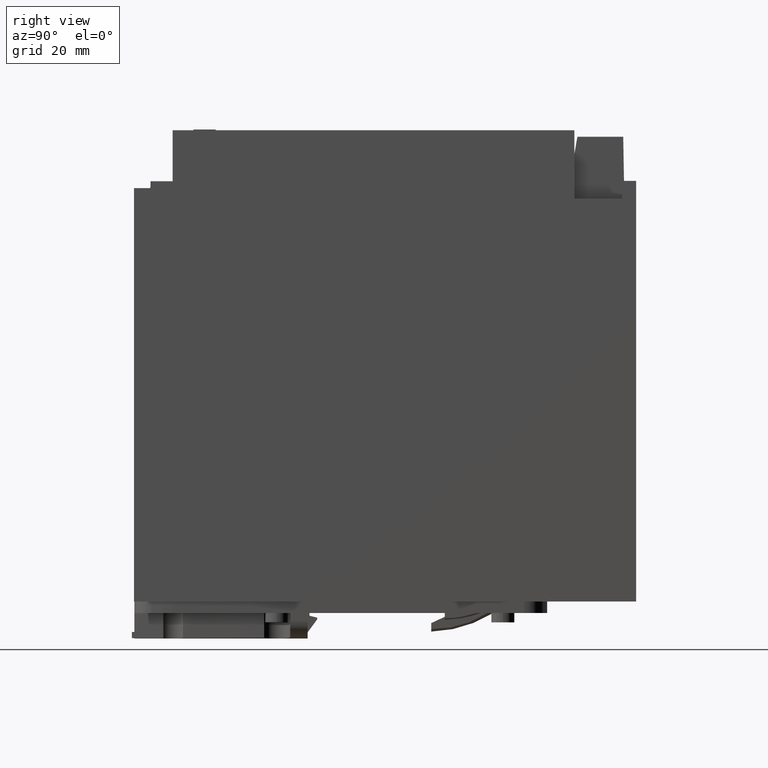
[diagram: clean part render]
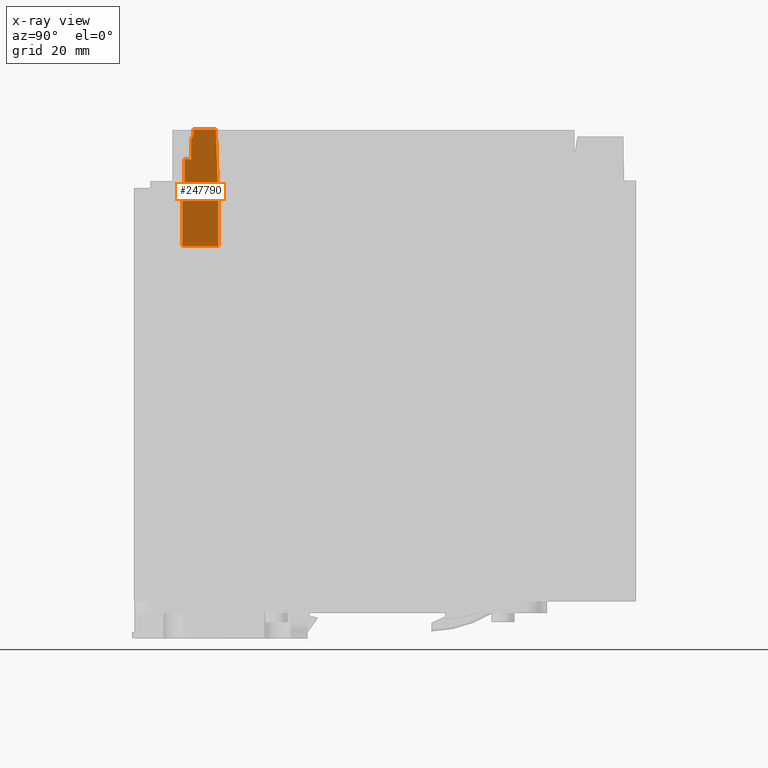
[diagram: x-ray — body ghosted, one internal face saturated and labeled with its STEP entity id]
A machine part, right view, then the same camera in x-ray: the body is ghosted and one INTERNAL B-rep face — a face not visible from any outside direction — is saturated and labeled: STEP entity #247790.
In plain terms, the highlighted planar face has unit normal (-1, 0, -0).
Its self-contained STEP definition (entity closure, byte-faithful):
#223150=CARTESIAN_POINT('',(6.54992053017113,114.500000000009,
115.994117919032));
#223160=VERTEX_POINT('',#223150);
#224430=CARTESIAN_POINT('',(6.54992053017113,107.299985521229,
115.994117919032));
#224440=VERTEX_POINT('',#224430);
#224470=CARTESIAN_POINT('',(6.54992053017113,69.3727101965969,
115.994117919032));
#224480=DIRECTION('',(-2.57815653320528E-20,-1.,-3.46944695195361E-18));
#224490=VECTOR('',#224480,1.);
#224500=LINE('',#224470,#224490);
#224510=EDGE_CURVE('',#223160,#224440,#224500,.T.);
#227100=CARTESIAN_POINT('',(6.54992878672902,107.299985521229,
116.594733752156));
#227110=VERTEX_POINT('',#227100);
#227140=CARTESIAN_POINT('',(6.549716831829,107.299985521229,
101.176266327476));
#227150=DIRECTION('',(1.37468202355246E-5,-3.46944730604034E-18,
0.999999999905512));
#227160=VECTOR('',#227150,1.);
#227170=LINE('',#227140,#227160);
#227180=EDGE_CURVE('',#224440,#227110,#227170,.T.);
#232410=CARTESIAN_POINT('',(6.54989730610339,0.,114.304704124242));
#232420=DIRECTION('',(-2.5781565327185E-20,-1.,-3.46944659786689E-18));
#232430=VECTOR('',#232420,1.);
#232440=LINE('',#232410,#232430);
#232450=CARTESIAN_POINT('',(6.54989730610339,119.492482727515,
114.304704124242));
#232460=VERTEX_POINT('',#232450);
#232470=CARTESIAN_POINT('',(6.54989730610339,114.500000000009,
114.304704124242));
#232480=VERTEX_POINT('',#232470);
#232490=EDGE_CURVE('',#232460,#232480,#232440,.T.);
#247090=CARTESIAN_POINT('',(6.54993212822295,122.955015399259,
116.837807704637));
#247100=DIRECTION('',(-0.999999999905512,2.57338714660515E-20,
1.37468202355246E-5));
#247110=DIRECTION('',(-1.37468202355246E-5,3.46944730604034E-18,
-0.999999999905512));
#247120=AXIS2_PLACEMENT_3D('',#247090,#247100,#247110);
#247130=PLANE('',#247120);
#247140=CARTESIAN_POINT('',(6.54988960829135,69.3727101965969,
113.744733752425));
#247150=DIRECTION('',(-2.57815653320528E-20,-1.,-3.46944695195361E-18));
#247160=VECTOR('',#247150,1.);
#247170=LINE('',#247140,#247160);
#247180=CARTESIAN_POINT('',(6.54988960829135,122.199985521229,
113.744733752425));
#247190=VERTEX_POINT('',#247180);
#247200=CARTESIAN_POINT('',(6.54988960829135,120.811690252876,
113.744733752425));
#247210=VERTEX_POINT('',#247200);
#247220=EDGE_CURVE('',#247190,#247210,#247170,.T.);
#247230=ORIENTED_EDGE('',*,*,#247220,.F.);
#247240=CARTESIAN_POINT('',(6.55018976394719,69.3727101965969,
135.579285355763));
#247250=DIRECTION('',(5.37131058376617E-6,-0.920504853452425,
0.390731128452391));
#247260=VECTOR('',#247250,1.);
#247270=LINE('',#247240,#247260);
#247280=EDGE_CURVE('',#247210,#232460,#247270,.T.);
#247290=ORIENTED_EDGE('',*,*,#247280,.F.);
#247300=ORIENTED_EDGE('',*,*,#232490,.F.);
#247310=CARTESIAN_POINT('',(6.54832597988357,114.500000000009,0.));
#247320=DIRECTION('',(1.37468202355246E-5,-3.46944695195361E-18,
0.999999999905512));
#247330=VECTOR('',#247320,1.);
#247340=LINE('',#247310,#247330);
#247350=EDGE_CURVE('',#232480,#223160,#247340,.T.);
#247360=ORIENTED_EDGE('',*,*,#247350,.F.);
#247370=ORIENTED_EDGE('',*,*,#224510,.F.);
#247380=ORIENTED_EDGE('',*,*,#227180,.F.);
#247390=CARTESIAN_POINT('',(6.54992878672902,69.3727101965969,
116.594733752156));
#247400=DIRECTION('',(2.57815653320528E-20,1.,3.46944695195361E-18));
#247410=VECTOR('',#247400,1.);
#247420=LINE('',#247390,#247410);
#247430=CARTESIAN_POINT('',(6.54992878672902,92.0000000000089,
116.594733752156));
#247440=VERTEX_POINT('',#247430);
#247450=EDGE_CURVE('',#247440,#227110,#247420,.T.);
#247460=ORIENTED_EDGE('',*,*,#247450,.T.);
#247470=CARTESIAN_POINT('',(6.54832597988357,92.0000000000089,0.));
#247480=DIRECTION('',(-1.37468202355246E-5,3.46944695195361E-18,
-0.999999999905512));
#247490=VECTOR('',#247480,1.);
#247500=LINE('',#247470,#247490);
#247510=CARTESIAN_POINT('',(6.54980107836174,92.0000000000089,
107.304704124903));
#247520=VERTEX_POINT('',#247510);
#247530=EDGE_CURVE('',#247440,#247520,#247500,.T.);
#247540=ORIENTED_EDGE('',*,*,#247530,.F.);
#247550=CARTESIAN_POINT('',(6.54980107836174,0.,107.304704124903));
#247560=DIRECTION('',(2.5781565327185E-20,1.,3.46944659786689E-18));
#247570=VECTOR('',#247560,1.);
#247580=LINE('',#247550,#247570);
#247590=CARTESIAN_POINT('',(6.54980107836174,104.362810966403,
107.304704124903));
#247600=VERTEX_POINT('',#247590);
#247610=EDGE_CURVE('',#247520,#247600,#247580,.T.);
#247620=ORIENTED_EDGE('',*,*,#247610,.F.);
#247630=CARTESIAN_POINT('',(6.54978428137994,69.3727101965969,
106.082822881543));
#247640=DIRECTION('',(4.79757107479574E-7,0.999390827019096,
0.0348994966992023));
#247650=VECTOR('',#247640,1.);
#247660=LINE('',#247630,#247650);
#247670=CARTESIAN_POINT('',(6.54980964108919,122.199985521229,
107.927591985858));
#247680=VERTEX_POINT('',#247670);
#247690=EDGE_CURVE('',#247600,#247680,#247660,.T.);
#247700=ORIENTED_EDGE('',*,*,#247690,.F.);
#247710=CARTESIAN_POINT('',(6.549716831829,122.199985521228,
101.176266327476));
#247720=DIRECTION('',(-1.37468202355246E-5,3.46944730604034E-18,
-0.999999999905512));
#247730=VECTOR('',#247720,1.);
#247740=LINE('',#247710,#247730);
#247750=EDGE_CURVE('',#247190,#247680,#247740,.T.);
#247760=ORIENTED_EDGE('',*,*,#247750,.T.);
#247770=EDGE_LOOP('',(#247760,#247700,#247620,#247540,#247460,#247380,
#247370,#247360,#247300,#247290,#247230));
#247780=FACE_OUTER_BOUND('',#247770,.T.);
#247790=ADVANCED_FACE('',(#247780),#247130,.T.);